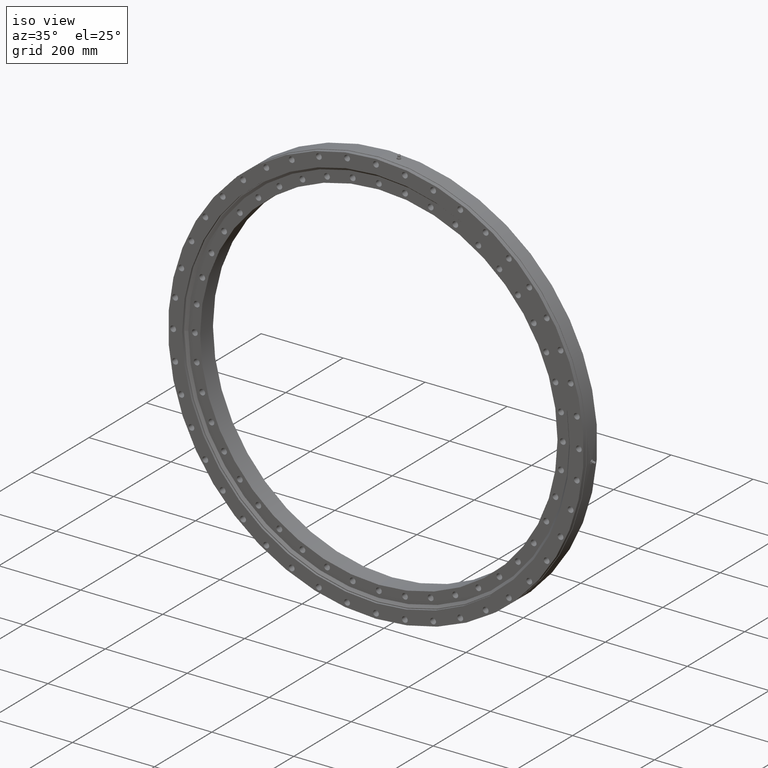
[diagram: clean part render]
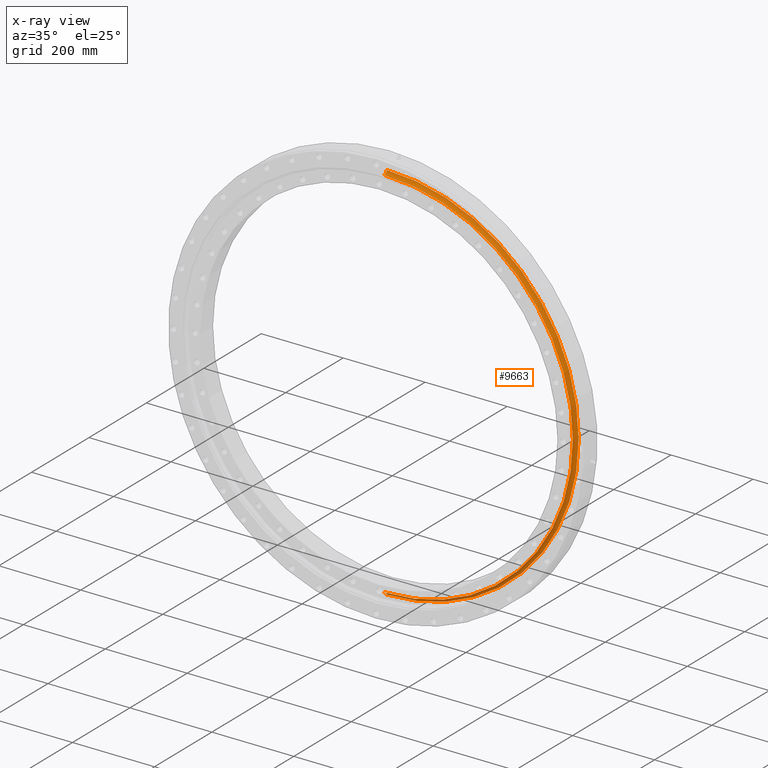
[diagram: x-ray — body ghosted, one internal face saturated and labeled with its STEP entity id]
A machine part, iso view, then the same camera in x-ray: the body is ghosted and one INTERNAL B-rep face — a face not visible from any outside direction — is saturated and labeled: STEP entity #9663.
In plain terms, the highlighted toroidal blend (fillet) surface has major radius 470.5 mm and minor (blend) radius 9.75 mm.
Its self-contained STEP definition (entity closure, byte-faithful):
#60 = CARTESIAN_POINT ( 'NONE',  ( 0.0000000000000000000, -1.046949008616244900E-015, 470.5000000000000000 ) ) ;
#544 = CARTESIAN_POINT ( 'NONE',  ( 0.0000000000000000000, 9.486832980505141700, 468.2500000000000000 ) ) ;
#555 = FACE_OUTER_BOUND ( 'NONE', #4758, .T. ) ;
#807 = CARTESIAN_POINT ( 'NONE',  ( 5.734408637007481500E-014, 9.486832980505116800, -468.2500000000000000 ) ) ;
#810 = CARTESIAN_POINT ( 'NONE',  ( 5.642560127071430800E-014, -1.507181843698310200E-014, -460.7500000000000000 ) ) ;
#919 = EDGE_CURVE ( 'NONE', #9298, #1741, #7127, .T. ) ;
#944 = DIRECTION ( 'NONE',  ( 0.0000000000000000000, 0.0000000000000000000, 1.000000000000000000 ) ) ;
#1411 = AXIS2_PLACEMENT_3D ( 'NONE', #8338, #3100, #9236 ) ;
#1435 = AXIS2_PLACEMENT_3D ( 'NONE', #60, #6115, #944 ) ;
#1741 = VERTEX_POINT ( 'NONE', #807 ) ;
#3099 = AXIS2_PLACEMENT_3D ( 'NONE', #8739, #3506, #9640 ) ;
#3100 = DIRECTION ( 'NONE',  ( -0.0000000000000000000, 1.000000000000000000, -2.727064569436389700E-017 ) ) ;
#3111 = TOROIDAL_SURFACE ( 'NONE', #6426, 470.5000000000000000, 9.750000000000000000 ) ;
#3506 = DIRECTION ( 'NONE',  ( 1.000000000000000000, 3.339690896028429500E-033, 1.224646799147353200E-016 ) ) ;
#4253 = CARTESIAN_POINT ( 'NONE',  ( 0.0000000000000000000, -1.507181843698315000E-014, 460.7500000000000000 ) ) ;
#4308 = CARTESIAN_POINT ( 'NONE',  ( 0.0000000000000000000, 9.486832980505129200, -1.104895824552873100E-015 ) ) ;
#4755 = AXIS2_PLACEMENT_3D ( 'NONE', #4308, #10414, #5164 ) ;
#4758 = EDGE_LOOP ( 'NONE', ( #10336, #9843, #5362, #6548 ) ) ;
#5134 = EDGE_CURVE ( 'NONE', #1741, #5531, #8804, .T. ) ;
#5164 = DIRECTION ( 'NONE',  ( 0.0000000000000000000, 2.593286563126033100E-017, 1.000000000000000000 ) ) ;
#5362 = ORIENTED_EDGE ( 'NONE', *, *, #5134, .F. ) ;
#5425 = DIRECTION ( 'NONE',  ( 0.0000000000000000000, 2.727064569436389700E-017, 1.000000000000000000 ) ) ;
#5531 = VERTEX_POINT ( 'NONE', #810 ) ;
#5559 = VERTEX_POINT ( 'NONE', #4253 ) ;
#5700 = CIRCLE ( 'NONE', #1411, 460.7500000000000000 ) ;
#6115 = DIRECTION ( 'NONE',  ( -1.000000000000000000, 0.0000000000000000000, 0.0000000000000000000 ) ) ;
#6426 = AXIS2_PLACEMENT_3D ( 'NONE', #10569, #8032, #5425 ) ;
#6548 = ORIENTED_EDGE ( 'NONE', *, *, #919, .F. ) ;
#7127 = CIRCLE ( 'NONE', #4755, 468.2500000000000000 ) ;
#8032 = DIRECTION ( 'NONE',  ( -0.0000000000000000000, 1.000000000000000000, -2.727064569436389700E-017 ) ) ;
#8338 = CARTESIAN_POINT ( 'NONE',  ( 0.0000000000000000000, -1.507181843698312800E-014, 3.256198623627719100E-032 ) ) ;
#8739 = CARTESIAN_POINT ( 'NONE',  ( 5.761963189988297600E-014, -2.670862660701266600E-014, -470.5000000000000000 ) ) ;
#8745 = CIRCLE ( 'NONE', #1435, 9.749999999999980500 ) ;
#8804 = CIRCLE ( 'NONE', #3099, 9.749999999999980500 ) ;
#9236 = DIRECTION ( 'NONE',  ( 0.0000000000000000000, 2.727064569436389700E-017, 1.000000000000000000 ) ) ;
#9275 = EDGE_CURVE ( 'NONE', #5559, #5531, #5700, .T. ) ;
#9298 = VERTEX_POINT ( 'NONE', #544 ) ;
#9640 = DIRECTION ( 'NONE',  ( 1.224646799147350000E-016, 0.0000000000000000000, -1.000000000000000000 ) ) ;
#9663 = ADVANCED_FACE ( 'NONE', ( #555 ), #3111, .F. ) ;
#9843 = ORIENTED_EDGE ( 'NONE', *, *, #9275, .T. ) ;
#10336 = ORIENTED_EDGE ( 'NONE', *, *, #11201, .T. ) ;
#10414 = DIRECTION ( 'NONE',  ( -0.0000000000000000000, 1.000000000000000000, -2.727064569436389700E-017 ) ) ;
#10569 = CARTESIAN_POINT ( 'NONE',  ( 0.0000000000000000000, -1.387778780781445700E-014, 0.0000000000000000000 ) ) ;
#11201 = EDGE_CURVE ( 'NONE', #9298, #5559, #8745, .T. ) ;